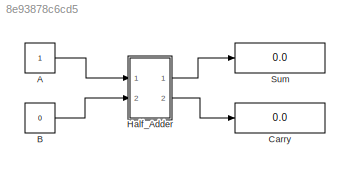
MODEL slx_8e93878c6cd5
KIND model
CONFIG AbsTol = auto
CONFIG EnableMultiTasking = off
CONFIG FixedStep = auto
CONFIG MaxStep = auto
CONFIG MinStep = auto
CONFIG RelTol = 1e-3
CONFIG SampleTimeConstraint = Unconstrained
CONFIG Solver = VariableStepAuto
CONFIG SolverName = VariableStepAuto
CONFIG StartTime = 0.0
CONFIG StopTime = 10.0
BLOCK [Constant] A
  OutDataTypeStr = boolean
BLOCK [Constant] B
  OutDataTypeStr = boolean
  Value = 0
BLOCK [Display] Carry
  Decimation = 1
  Ports = [1]
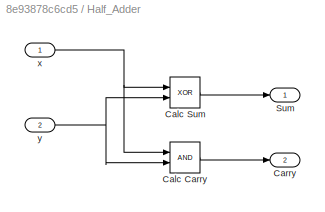
BLOCK [SubSystem] Half_Adder
  Ports = [2, 2]
  RequestExecContextInheritance = off
BLOCK [Logic] Half_Adder/Calc Carry
  AllPortsSameDT = off
  OutDataTypeStr = boolean
  Ports = [2, 1]
BLOCK [Logic] Half_Adder/Calc Sum
  AllPortsSameDT = off
  Operator = XOR
  OutDataTypeStr = boolean
  Ports = [2, 1]
BLOCK [Outport] Half_Adder/Carry
  IconDisplay = Port number
  Port = 2
BLOCK [Outport] Half_Adder/Sum
  IconDisplay = Port number
BLOCK [Inport] Half_Adder/x
  IconDisplay = Port number
BLOCK [Inport] Half_Adder/y
  IconDisplay = Port number
  Port = 2
BLOCK [Display] Sum
  Decimation = 1
  Ports = [1]
LINE A:1 -> Half_Adder:1
LINE B:1 -> Half_Adder:2
LINE Half_Adder/Calc Carry:1 -> Half_Adder/Carry:1
LINE Half_Adder/Calc Sum:1 -> Half_Adder/Sum:1
NET Half_Adder/x:1 -> Half_Adder/Calc Carry:1, Half_Adder/Calc Sum:1
NET Half_Adder/y:1 -> Half_Adder/Calc Carry:2, Half_Adder/Calc Sum:2
LINE Half_Adder:1 -> Sum:1
LINE Half_Adder:2 -> Carry:1
note: NET lines group one-source signal fan-out (src -> all destinations, sorted); 1:1 wires keep LINE
